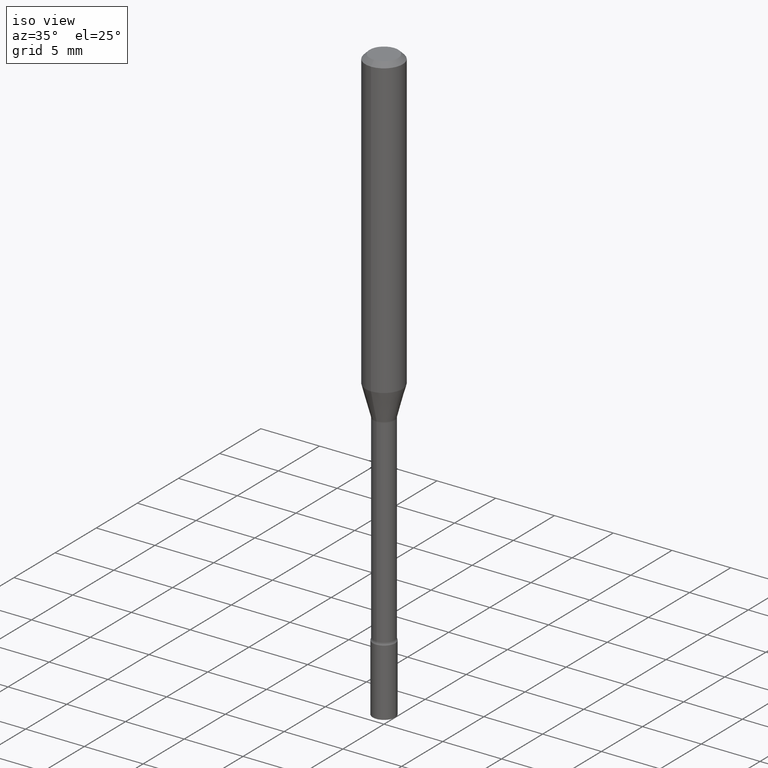
[diagram: clean part render]
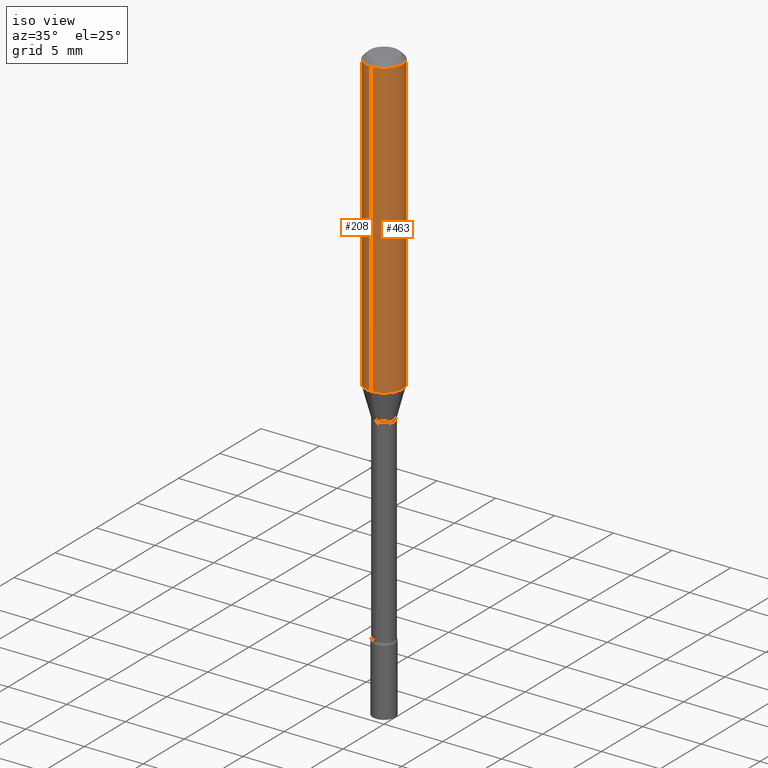
[diagram: same view with one multi-face feature highlighted, each face labeled with its STEP entity id]
A machine part, iso view. The highlighted faces form ONE feature: a constant-radius fillet chain: 2 tangent blend faces with common blend radius 1.5875 mm. The faces share edges in the B-rep.
Their STEP definitions:
[1] entity #208 (Cylinder):
#18 = ORIENTED_EDGE ( 'NONE', *, *, #469, .F. ) ;
#30 = DIRECTION ( 'NONE',  ( -6.982962677686265922E-15, -1.000000000000000000, 3.483106191921935554E-15 ) ) ;
#85 = DIRECTION ( 'NONE',  ( -2.445546321764708525E-29, 3.491370332121285738E-15, 1.000000000000000000 ) ) ;
#89 = EDGE_CURVE ( 'NONE', #402, #314, #474, .T. ) ;
#111 = ORIENTED_EDGE ( 'NONE', *, *, #262, .T. ) ;
#146 = AXIS2_PLACEMENT_3D ( 'NONE', #446, #85, #249 ) ;
#170 = VERTEX_POINT ( 'NONE', #479 ) ;
#180 = EDGE_LOOP ( 'NONE', ( #18, #376, #111, #236 ) ) ;
#181 = VECTOR ( 'NONE', #286, 39.37007874015748143 ) ;
#208 = ADVANCED_FACE ( 'NONE', ( #520 ), #347, .T. ) ;
#235 = LINE ( 'NONE', #386, #313 ) ;
#236 = ORIENTED_EDGE ( 'NONE', *, *, #89, .F. ) ;
#241 = AXIS2_PLACEMENT_3D ( 'NONE', #445, #317, #355 ) ;
#249 = DIRECTION ( 'NONE',  ( -6.982962677686265922E-15, -1.000000000000000000, 4.370956789862821150E-15 ) ) ;
#262 = EDGE_CURVE ( 'NONE', #170, #314, #235, .T. ) ;
#286 = DIRECTION ( 'NONE',  ( -2.445546321764708245E-29, 3.491370332121285738E-15, 1.000000000000000000 ) ) ;
#289 = CIRCLE ( 'NONE', #146, 0.06250000000000000000 ) ;
#300 = CARTESIAN_POINT ( 'NONE',  ( 3.668319482647070110E-31, -5.237055498181939355E-17, -0.01500000000000003067 ) ) ;
#313 = VECTOR ( 'NONE', #348, 39.37007874015748143 ) ;
#314 = VERTEX_POINT ( 'NONE', #480 ) ;
#317 = DIRECTION ( 'NONE',  ( -2.445546321764708525E-29, 3.491370332121285738E-15, 1.000000000000000000 ) ) ;
#329 = CARTESIAN_POINT ( 'NONE',  ( 4.440892098500871695E-16, 0.06249999999999995837, -0.01500000000000024751 ) ) ;
#333 = VERTEX_POINT ( 'NONE', #364 ) ;
#347 = CYLINDRICAL_SURFACE ( 'NONE', #241, 0.06250000000000000000 ) ;
#348 = DIRECTION ( 'NONE',  ( -2.445546321764708245E-29, 3.491370332121285738E-15, 1.000000000000000000 ) ) ;
#355 = DIRECTION ( 'NONE',  ( -6.982962677686265922E-15, -1.000000000000000000, 3.491370332121285738E-15 ) ) ;
#357 = LINE ( 'NONE', #485, #181 ) ;
#364 = CARTESIAN_POINT ( 'NONE',  ( 4.440892098500869722E-16, 0.06249999999999652361, -0.9983016154937485176 ) ) ;
#376 = ORIENTED_EDGE ( 'NONE', *, *, #484, .T. ) ;
#386 = CARTESIAN_POINT ( 'NONE',  ( -4.364351673553916201E-16, -0.06250000000000000000, 2.182106457575803586E-16 ) ) ;
#402 = VERTEX_POINT ( 'NONE', #329 ) ;
#445 = CARTESIAN_POINT ( 'NONE',  ( 0.000000000000000000, 0.000000000000000000, 0.000000000000000000 ) ) ;
#446 = CARTESIAN_POINT ( 'NONE',  ( 2.441392843782502609E-29, -3.485440642843624235E-15, -0.9983016154937482955 ) ) ;
#469 = EDGE_CURVE ( 'NONE', #333, #402, #357, .T. ) ;
#474 = CIRCLE ( 'NONE', #516, 0.06250000000000000000 ) ;
#479 = CARTESIAN_POINT ( 'NONE',  ( -4.364351673553671654E-16, -0.06250000000000346945, -0.9983016154937480735 ) ) ;
#480 = CARTESIAN_POINT ( 'NONE',  ( -4.364351673553912750E-16, -0.06250000000000005551, -0.01499999999999981209 ) ) ;
#484 = EDGE_CURVE ( 'NONE', #333, #170, #289, .T. ) ;
#485 = CARTESIAN_POINT ( 'NONE',  ( 4.440892098500625669E-16, 0.06250000000000000000, -2.182106457575803586E-16 ) ) ;
#498 = DIRECTION ( 'NONE',  ( -2.445546321764708525E-29, 3.491370332121285738E-15, 1.000000000000000000 ) ) ;
#516 = AXIS2_PLACEMENT_3D ( 'NONE', #300, #498, #30 ) ;
#520 = FACE_OUTER_BOUND ( 'NONE', #180, .T. ) ;
[2] entity #463 (Cylinder):
#1 = ORIENTED_EDGE ( 'NONE', *, *, #247, .T. ) ;
#15 = FACE_OUTER_BOUND ( 'NONE', #424, .T. ) ;
#24 = DIRECTION ( 'NONE',  ( -2.445546321764708525E-29, 3.491370332121285738E-15, 1.000000000000000000 ) ) ;
#40 = AXIS2_PLACEMENT_3D ( 'NONE', #399, #310, #473 ) ;
#61 = DIRECTION ( 'NONE',  ( -6.982962677686265922E-15, -1.000000000000000000, 3.483106191921935554E-15 ) ) ;
#131 = DIRECTION ( 'NONE',  ( -2.445546321764708525E-29, 3.491370332121285738E-15, 1.000000000000000000 ) ) ;
#145 = CIRCLE ( 'NONE', #40, 0.06250000000000000000 ) ;
#165 = AXIS2_PLACEMENT_3D ( 'NONE', #331, #131, #453 ) ;
#170 = VERTEX_POINT ( 'NONE', #479 ) ;
#176 = CYLINDRICAL_SURFACE ( 'NONE', #165, 0.06250000000000000000 ) ;
#181 = VECTOR ( 'NONE', #286, 39.37007874015748143 ) ;
#185 = CARTESIAN_POINT ( 'NONE',  ( 3.668319482647070110E-31, -5.237055498181939355E-17, -0.01500000000000003067 ) ) ;
#235 = LINE ( 'NONE', #386, #313 ) ;
#247 = EDGE_CURVE ( 'NONE', #170, #333, #145, .T. ) ;
#262 = EDGE_CURVE ( 'NONE', #170, #314, #235, .T. ) ;
#286 = DIRECTION ( 'NONE',  ( -2.445546321764708245E-29, 3.491370332121285738E-15, 1.000000000000000000 ) ) ;
#306 = AXIS2_PLACEMENT_3D ( 'NONE', #185, #24, #61 ) ;
#310 = DIRECTION ( 'NONE',  ( -2.445546321764708525E-29, 3.491370332121285738E-15, 1.000000000000000000 ) ) ;
#313 = VECTOR ( 'NONE', #348, 39.37007874015748143 ) ;
#314 = VERTEX_POINT ( 'NONE', #480 ) ;
#329 = CARTESIAN_POINT ( 'NONE',  ( 4.440892098500871695E-16, 0.06249999999999995837, -0.01500000000000024751 ) ) ;
#331 = CARTESIAN_POINT ( 'NONE',  ( 0.000000000000000000, 0.000000000000000000, 0.000000000000000000 ) ) ;
#333 = VERTEX_POINT ( 'NONE', #364 ) ;
#348 = DIRECTION ( 'NONE',  ( -2.445546321764708245E-29, 3.491370332121285738E-15, 1.000000000000000000 ) ) ;
#357 = LINE ( 'NONE', #485, #181 ) ;
#360 = ORIENTED_EDGE ( 'NONE', *, *, #519, .F. ) ;
#364 = CARTESIAN_POINT ( 'NONE',  ( 4.440892098500869722E-16, 0.06249999999999652361, -0.9983016154937485176 ) ) ;
#386 = CARTESIAN_POINT ( 'NONE',  ( -4.364351673553916201E-16, -0.06250000000000000000, 2.182106457575803586E-16 ) ) ;
#399 = CARTESIAN_POINT ( 'NONE',  ( 2.441392843782502609E-29, -3.485440642843624235E-15, -0.9983016154937482955 ) ) ;
#402 = VERTEX_POINT ( 'NONE', #329 ) ;
#403 = CIRCLE ( 'NONE', #306, 0.06250000000000000000 ) ;
#424 = EDGE_LOOP ( 'NONE', ( #1, #451, #360, #467 ) ) ;
#451 = ORIENTED_EDGE ( 'NONE', *, *, #469, .T. ) ;
#453 = DIRECTION ( 'NONE',  ( -6.982962677686265922E-15, -1.000000000000000000, 3.491370332121285738E-15 ) ) ;
#463 = ADVANCED_FACE ( 'NONE', ( #15 ), #176, .T. ) ;
#467 = ORIENTED_EDGE ( 'NONE', *, *, #262, .F. ) ;
#469 = EDGE_CURVE ( 'NONE', #333, #402, #357, .T. ) ;
#473 = DIRECTION ( 'NONE',  ( -6.982962677686265922E-15, -1.000000000000000000, 4.370956789862821150E-15 ) ) ;
#479 = CARTESIAN_POINT ( 'NONE',  ( -4.364351673553671654E-16, -0.06250000000000346945, -0.9983016154937480735 ) ) ;
#480 = CARTESIAN_POINT ( 'NONE',  ( -4.364351673553912750E-16, -0.06250000000000005551, -0.01499999999999981209 ) ) ;
#485 = CARTESIAN_POINT ( 'NONE',  ( 4.440892098500625669E-16, 0.06250000000000000000, -2.182106457575803586E-16 ) ) ;
#519 = EDGE_CURVE ( 'NONE', #314, #402, #403, .T. ) ;